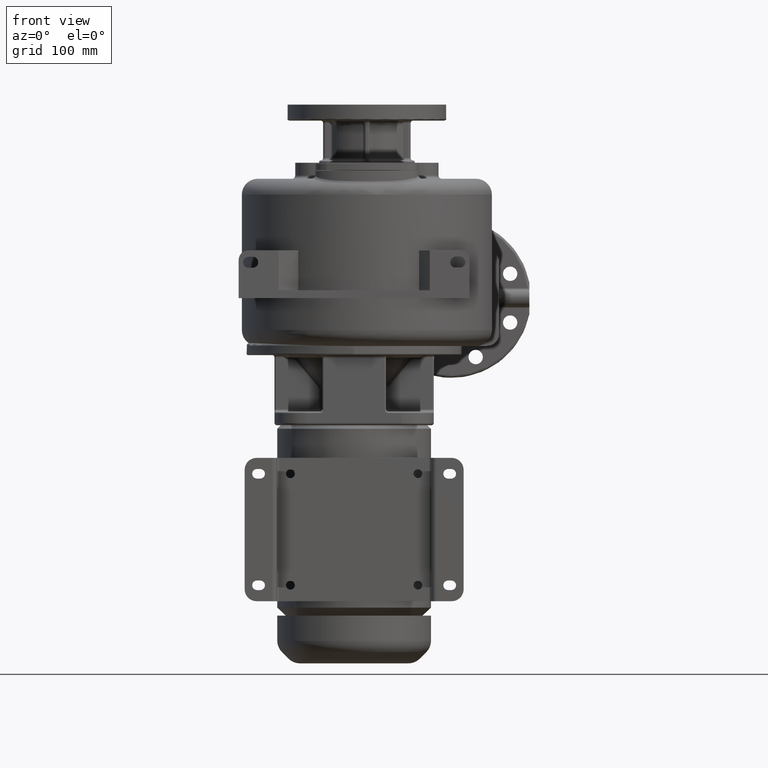
[diagram: clean part render]
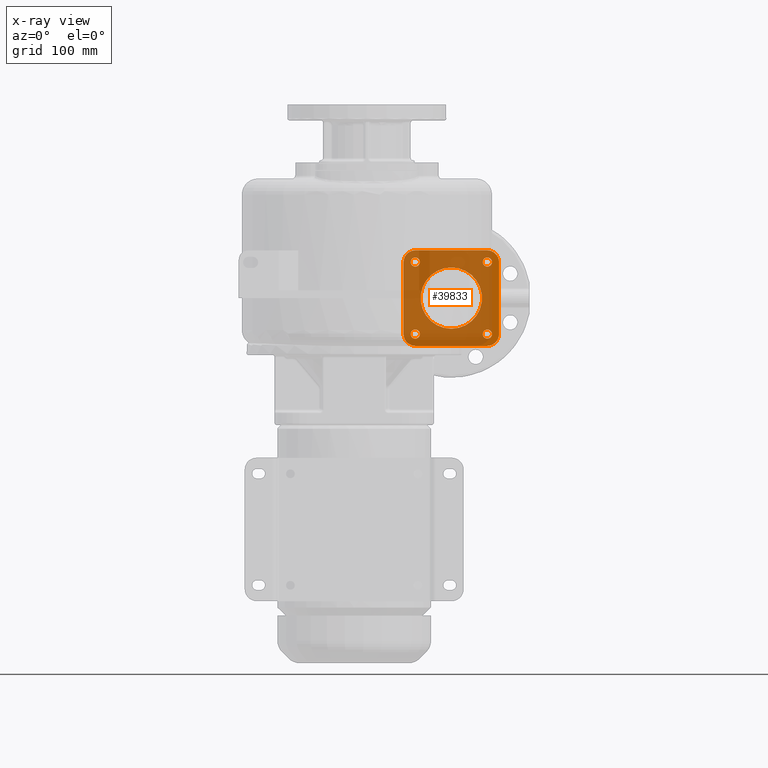
[diagram: x-ray — body ghosted, one internal face saturated and labeled with its STEP entity id]
A machine part, front view, then the same camera in x-ray: the body is ghosted and one INTERNAL B-rep face — a face not visible from any outside direction — is saturated and labeled: STEP entity #39833.
In plain terms, the highlighted planar face has unit normal (0, 1, 0).
Its self-contained STEP definition (entity closure, byte-faithful):
#35929=DIRECTION('',(0.E0,0.E0,1.E0));
#35930=VECTOR('',#35929,9.E1);
#35931=CARTESIAN_POINT('',(6.2E1,2.27E2,1.125E2));
#35932=LINE('',#35931,#35930);
#35971=CARTESIAN_POINT('',(1.22E2,2.27E2,1.575E2));
#35972=DIRECTION('',(0.E0,-1.E0,0.E0));
#35973=DIRECTION('',(0.E0,0.E0,-1.E0));
#35974=AXIS2_PLACEMENT_3D('',#35971,#35972,#35973);
#35976=CARTESIAN_POINT('',(1.22E2,2.27E2,1.575E2));
#35977=DIRECTION('',(0.E0,-1.E0,0.E0));
#35978=DIRECTION('',(0.E0,0.E0,1.E0));
#35979=AXIS2_PLACEMENT_3D('',#35976,#35977,#35978);
#35981=CARTESIAN_POINT('',(7.674516600406E1,2.27E2,1.122451660041E2));
#35982=DIRECTION('',(0.E0,1.E0,0.E0));
#35983=DIRECTION('',(1.E0,0.E0,0.E0));
#35984=AXIS2_PLACEMENT_3D('',#35981,#35982,#35983);
#35986=CARTESIAN_POINT('',(7.674516600406E1,2.27E2,1.122451660041E2));
#35987=DIRECTION('',(0.E0,1.E0,0.E0));
#35988=DIRECTION('',(-1.E0,0.E0,0.E0));
#35989=AXIS2_PLACEMENT_3D('',#35986,#35987,#35988);
#35991=CARTESIAN_POINT('',(7.674516600406E1,2.27E2,2.027548339959E2));
#35992=DIRECTION('',(0.E0,1.E0,0.E0));
#35993=DIRECTION('',(0.E0,0.E0,-1.E0));
#35994=AXIS2_PLACEMENT_3D('',#35991,#35992,#35993);
#35996=CARTESIAN_POINT('',(7.674516600406E1,2.27E2,2.027548339959E2));
#35997=DIRECTION('',(0.E0,1.E0,0.E0));
#35998=DIRECTION('',(0.E0,0.E0,1.E0));
#35999=AXIS2_PLACEMENT_3D('',#35996,#35997,#35998);
#36001=CARTESIAN_POINT('',(1.672548339959E2,2.27E2,2.027548339959E2));
#36002=DIRECTION('',(0.E0,1.E0,0.E0));
#36003=DIRECTION('',(-1.E0,0.E0,0.E0));
#36004=AXIS2_PLACEMENT_3D('',#36001,#36002,#36003);
#36006=CARTESIAN_POINT('',(1.672548339959E2,2.27E2,2.027548339959E2));
#36007=DIRECTION('',(0.E0,1.E0,0.E0));
#36008=DIRECTION('',(1.E0,0.E0,0.E0));
#36009=AXIS2_PLACEMENT_3D('',#36006,#36007,#36008);
#36011=CARTESIAN_POINT('',(1.672548339959E2,2.27E2,1.122451660041E2));
#36012=DIRECTION('',(0.E0,1.E0,0.E0));
#36013=DIRECTION('',(0.E0,0.E0,1.E0));
#36014=AXIS2_PLACEMENT_3D('',#36011,#36012,#36013);
#36016=CARTESIAN_POINT('',(1.672548339959E2,2.27E2,1.122451660041E2));
#36017=DIRECTION('',(0.E0,1.E0,0.E0));
#36018=DIRECTION('',(0.E0,0.E0,-1.E0));
#36019=AXIS2_PLACEMENT_3D('',#36016,#36017,#36018);
#36021=DIRECTION('',(-1.E0,0.E0,0.E0));
#36022=VECTOR('',#36021,9.E1);
#36023=CARTESIAN_POINT('',(1.67E2,2.27E2,9.75E1));
#36024=LINE('',#36023,#36022);
#36037=CARTESIAN_POINT('',(1.67E2,2.27E2,1.125E2));
#36038=DIRECTION('',(0.E0,-1.E0,0.E0));
#36039=DIRECTION('',(0.E0,0.E0,-1.E0));
#36040=AXIS2_PLACEMENT_3D('',#36037,#36038,#36039);
#36047=DIRECTION('',(0.E0,0.E0,-1.E0));
#36048=VECTOR('',#36047,9.E1);
#36049=CARTESIAN_POINT('',(1.82E2,2.27E2,2.025E2));
#36050=LINE('',#36049,#36048);
#36085=CARTESIAN_POINT('',(1.67E2,2.27E2,2.025E2));
#36086=DIRECTION('',(0.E0,-1.E0,0.E0));
#36087=DIRECTION('',(1.E0,0.E0,0.E0));
#36088=AXIS2_PLACEMENT_3D('',#36085,#36086,#36087);
#36095=DIRECTION('',(1.E0,0.E0,0.E0));
#36096=VECTOR('',#36095,9.E1);
#36097=CARTESIAN_POINT('',(7.7E1,2.27E2,2.175E2));
#36098=LINE('',#36097,#36096);
#36111=CARTESIAN_POINT('',(7.7E1,2.27E2,2.025E2));
#36112=DIRECTION('',(0.E0,-1.E0,0.E0));
#36113=DIRECTION('',(0.E0,0.E0,1.E0));
#36114=AXIS2_PLACEMENT_3D('',#36111,#36112,#36113);
#37154=CARTESIAN_POINT('',(7.7E1,2.27E2,1.125E2));
#37155=DIRECTION('',(0.E0,-1.E0,0.E0));
#37156=DIRECTION('',(-1.E0,0.E0,0.E0));
#37157=AXIS2_PLACEMENT_3D('',#37154,#37155,#37156);
#39567=CARTESIAN_POINT('',(1.67E2,2.27E2,9.75E1));
#39568=CARTESIAN_POINT('',(7.7E1,2.27E2,9.75E1));
#39569=VERTEX_POINT('',#39567);
#39570=VERTEX_POINT('',#39568);
#39571=CARTESIAN_POINT('',(6.2E1,2.27E2,1.125E2));
#39572=CARTESIAN_POINT('',(6.2E1,2.27E2,2.025E2));
#39573=VERTEX_POINT('',#39571);
#39574=VERTEX_POINT('',#39572);
#39575=CARTESIAN_POINT('',(7.7E1,2.27E2,2.175E2));
#39576=CARTESIAN_POINT('',(1.67E2,2.27E2,2.175E2));
#39577=VERTEX_POINT('',#39575);
#39578=VERTEX_POINT('',#39576);
#39579=CARTESIAN_POINT('',(1.82E2,2.27E2,2.025E2));
#39580=CARTESIAN_POINT('',(1.82E2,2.27E2,1.125E2));
#39581=VERTEX_POINT('',#39579);
#39582=VERTEX_POINT('',#39580);
#39623=CARTESIAN_POINT('',(1.22E2,2.27E2,1.19E2));
#39624=CARTESIAN_POINT('',(1.22E2,2.27E2,1.96E2));
#39625=VERTEX_POINT('',#39623);
#39626=VERTEX_POINT('',#39624);
#39691=CARTESIAN_POINT('',(8.249516600406E1,2.27E2,1.122451660041E2));
#39692=CARTESIAN_POINT('',(7.099516600406E1,2.27E2,1.122451660041E2));
#39693=VERTEX_POINT('',#39691);
#39694=VERTEX_POINT('',#39692);
#39699=CARTESIAN_POINT('',(7.674516600406E1,2.27E2,1.970048339959E2));
#39700=CARTESIAN_POINT('',(7.674516600406E1,2.27E2,2.085048339959E2));
#39701=VERTEX_POINT('',#39699);
#39702=VERTEX_POINT('',#39700);
#39707=CARTESIAN_POINT('',(1.615048339959E2,2.27E2,2.027548339959E2));
#39708=CARTESIAN_POINT('',(1.730048339959E2,2.27E2,2.027548339959E2));
#39709=VERTEX_POINT('',#39707);
#39710=VERTEX_POINT('',#39708);
#39715=CARTESIAN_POINT('',(1.672548339959E2,2.27E2,1.179951660041E2));
#39716=CARTESIAN_POINT('',(1.672548339959E2,2.27E2,1.064951660041E2));
#39717=VERTEX_POINT('',#39715);
#39718=VERTEX_POINT('',#39716);
#39781=CARTESIAN_POINT('',(1.22E2,2.27E2,1.575E2));
#39782=DIRECTION('',(0.E0,1.E0,0.E0));
#39783=DIRECTION('',(1.E0,0.E0,0.E0));
#39784=AXIS2_PLACEMENT_3D('',#39781,#39782,#39783);
#39785=PLANE('',#39784);
#39787=ORIENTED_EDGE('',*,*,#39786,.T.);
#39789=ORIENTED_EDGE('',*,*,#39788,.F.);
#39790=ORIENTED_EDGE('',*,*,#39759,.T.);
#39792=ORIENTED_EDGE('',*,*,#39791,.F.);
#39794=ORIENTED_EDGE('',*,*,#39793,.T.);
#39796=ORIENTED_EDGE('',*,*,#39795,.F.);
#39798=ORIENTED_EDGE('',*,*,#39797,.T.);
#39800=ORIENTED_EDGE('',*,*,#39799,.F.);
#39801=EDGE_LOOP('',(#39787,#39789,#39790,#39792,#39794,#39796,#39798,#39800));
#39802=FACE_OUTER_BOUND('',#39801,.F.);
#39804=ORIENTED_EDGE('',*,*,#39803,.T.);
#39806=ORIENTED_EDGE('',*,*,#39805,.T.);
#39807=EDGE_LOOP('',(#39804,#39806));
#39808=FACE_BOUND('',#39807,.F.);
#39810=ORIENTED_EDGE('',*,*,#39809,.F.);
#39812=ORIENTED_EDGE('',*,*,#39811,.F.);
#39813=EDGE_LOOP('',(#39810,#39812));
#39814=FACE_BOUND('',#39813,.F.);
#39816=ORIENTED_EDGE('',*,*,#39815,.F.);
#39818=ORIENTED_EDGE('',*,*,#39817,.F.);
#39819=EDGE_LOOP('',(#39816,#39818));
#39820=FACE_BOUND('',#39819,.F.);
#39822=ORIENTED_EDGE('',*,*,#39821,.F.);
#39824=ORIENTED_EDGE('',*,*,#39823,.F.);
#39825=EDGE_LOOP('',(#39822,#39824));
#39826=FACE_BOUND('',#39825,.F.);
#39828=ORIENTED_EDGE('',*,*,#39827,.F.);
#39830=ORIENTED_EDGE('',*,*,#39829,.F.);
#39831=EDGE_LOOP('',(#39828,#39830));
#39832=FACE_BOUND('',#39831,.F.);
#39833=ADVANCED_FACE('',(#39802,#39808,#39814,#39820,#39826,#39832),#39785,.F.);
#35975=CIRCLE('',#35974,3.85E1);
#35980=CIRCLE('',#35979,3.85E1);
#35985=CIRCLE('',#35984,5.75E0);
#35990=CIRCLE('',#35989,5.75E0);
#35995=CIRCLE('',#35994,5.75E0);
#36000=CIRCLE('',#35999,5.75E0);
#36005=CIRCLE('',#36004,5.75E0);
#36010=CIRCLE('',#36009,5.75E0);
#36015=CIRCLE('',#36014,5.75E0);
#36020=CIRCLE('',#36019,5.75E0);
#36041=CIRCLE('',#36040,1.5E1);
#36089=CIRCLE('',#36088,1.5E1);
#36115=CIRCLE('',#36114,1.5E1);
#37158=CIRCLE('',#37157,1.5E1);
#39759=EDGE_CURVE('',#39573,#39574,#35932,.T.);
#39786=EDGE_CURVE('',#39569,#39570,#36024,.T.);
#39788=EDGE_CURVE('',#39573,#39570,#37158,.T.);
#39791=EDGE_CURVE('',#39577,#39574,#36115,.T.);
#39793=EDGE_CURVE('',#39577,#39578,#36098,.T.);
#39795=EDGE_CURVE('',#39581,#39578,#36089,.T.);
#39797=EDGE_CURVE('',#39581,#39582,#36050,.T.);
#39799=EDGE_CURVE('',#39569,#39582,#36041,.T.);
#39803=EDGE_CURVE('',#39625,#39626,#35975,.T.);
#39805=EDGE_CURVE('',#39626,#39625,#35980,.T.);
#39809=EDGE_CURVE('',#39693,#39694,#35985,.T.);
#39811=EDGE_CURVE('',#39694,#39693,#35990,.T.);
#39815=EDGE_CURVE('',#39701,#39702,#35995,.T.);
#39817=EDGE_CURVE('',#39702,#39701,#36000,.T.);
#39821=EDGE_CURVE('',#39709,#39710,#36005,.T.);
#39823=EDGE_CURVE('',#39710,#39709,#36010,.T.);
#39827=EDGE_CURVE('',#39717,#39718,#36015,.T.);
#39829=EDGE_CURVE('',#39718,#39717,#36020,.T.);